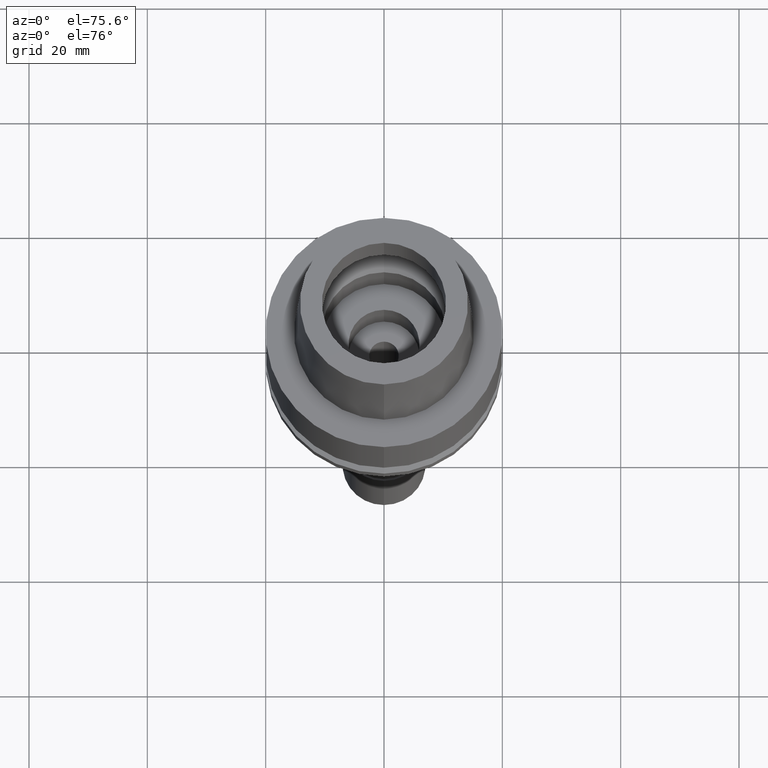
[diagram: clean part render]
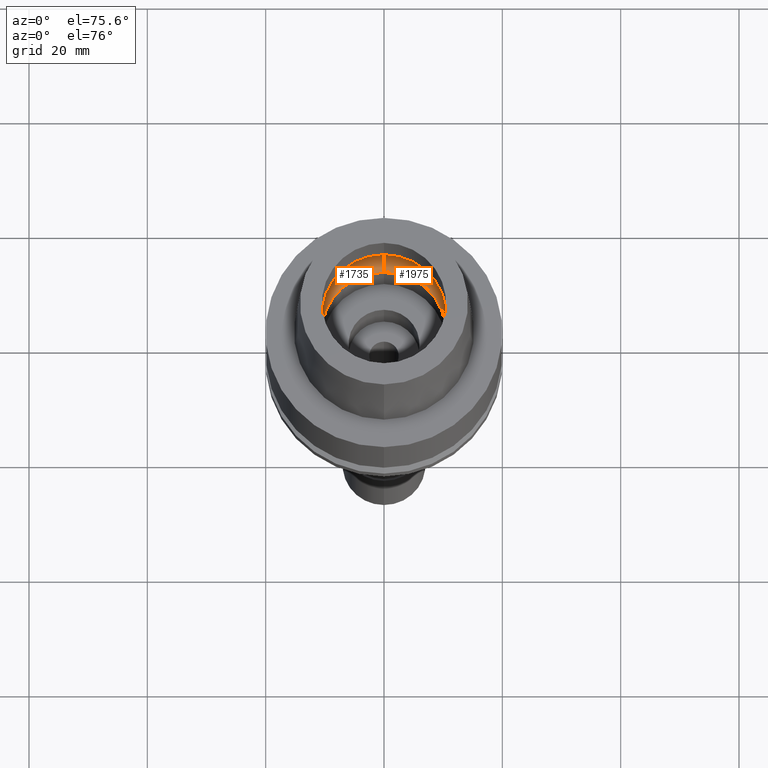
[diagram: same view with one multi-face feature highlighted, each face labeled with its STEP entity id]
A machine part, auxiliary view. The highlighted faces form ONE feature: a constant-radius fillet chain: 2 tangent blend faces with common blend radius 5 mm. The faces share edges in the B-rep.
Their STEP definitions:
[1] entity #1735 (Torus):
#115 = VERTEX_POINT ( 'NONE', #323 ) ;
#169 = CARTESIAN_POINT ( 'NONE',  ( 0.0000000000000000000, 0.0000000000000000000, 4.225999999999999979 ) ) ;
#240 = DIRECTION ( 'NONE',  ( 0.0000000000000000000, 1.000000000000000000, 0.0000000000000000000 ) ) ;
#243 = VERTEX_POINT ( 'NONE', #749 ) ;
#315 = DIRECTION ( 'NONE',  ( 1.000000000000000000, 0.0000000000000000000, 0.0000000000000000000 ) ) ;
#323 = CARTESIAN_POINT ( 'NONE',  ( 0.0000000000000000000, -10.50000000000000000, 0.05017672787749999364 ) ) ;
#425 = CIRCLE ( 'NONE', #645, 12.75000000000000000 ) ;
#440 = CARTESIAN_POINT ( 'NONE',  ( 0.0000000000000000000, 0.0000000000000000000, 4.225999999999999979 ) ) ;
#468 = ORIENTED_EDGE ( 'NONE', *, *, #2306, .F. ) ;
#498 = DIRECTION ( 'NONE',  ( 0.0000000000000000000, -0.5500000000000007105, -0.8351646544245028281 ) ) ;
#591 = CARTESIAN_POINT ( 'NONE',  ( 0.0000000000000000000, -12.75000000000000000, 4.225999999999999979 ) ) ;
#593 = DIRECTION ( 'NONE',  ( 0.0000000000000000000, 0.0000000000000000000, 1.000000000000000000 ) ) ;
#645 = AXIS2_PLACEMENT_3D ( 'NONE', #169, #1202, #1009 ) ;
#749 = CARTESIAN_POINT ( 'NONE',  ( 0.0000000000000000000, 12.75000000000000000, 4.225999999999999979 ) ) ;
#949 = AXIS2_PLACEMENT_3D ( 'NONE', #1766, #315, #2391 ) ;
#980 = CARTESIAN_POINT ( 'NONE',  ( 0.0000000000000000000, 0.0000000000000000000, 0.05017672787749999364 ) ) ;
#1009 = DIRECTION ( 'NONE',  ( 0.0000000000000000000, -1.000000000000000000, 0.0000000000000000000 ) ) ;
#1202 = DIRECTION ( 'NONE',  ( 0.0000000000000000000, 0.0000000000000000000, -1.000000000000000000 ) ) ;
#1204 = DIRECTION ( 'NONE',  ( 0.0000000000000000000, 1.000000000000000000, 0.0000000000000000000 ) ) ;
#1289 = DIRECTION ( 'NONE',  ( 0.0000000000000000000, 0.0000000000000000000, 1.000000000000000000 ) ) ;
#1341 = EDGE_CURVE ( 'NONE', #2330, #243, #2303, .T. ) ;
#1391 = TOROIDAL_SURFACE ( 'NONE', #1779, 7.750000000000000000, 5.000000000000000000 ) ;
#1404 = CARTESIAN_POINT ( 'NONE',  ( 0.0000000000000000000, 10.50000000000000000, 0.05017672787753999636 ) ) ;
#1519 = CARTESIAN_POINT ( 'NONE',  ( 0.0000000000000000000, -7.750000000000000000, 4.225999999999999979 ) ) ;
#1656 = CIRCLE ( 'NONE', #2182, 10.50000000000000000 ) ;
#1680 = VERTEX_POINT ( 'NONE', #591 ) ;
#1684 = EDGE_CURVE ( 'NONE', #1680, #243, #425, .T. ) ;
#1701 = CIRCLE ( 'NONE', #2663, 4.999999999999994671 ) ;
#1735 = ADVANCED_FACE ( 'NONE', ( #2517 ), #1391, .F. ) ;
#1766 = CARTESIAN_POINT ( 'NONE',  ( 0.0000000000000000000, 7.750000000000000000, 4.225999999999999979 ) ) ;
#1779 = AXIS2_PLACEMENT_3D ( 'NONE', #440, #1289, #240 ) ;
#1888 = ORIENTED_EDGE ( 'NONE', *, *, #1341, .T. ) ;
#1974 = DIRECTION ( 'NONE',  ( -1.000000000000000000, 0.0000000000000000000, 0.0000000000000000000 ) ) ;
#2182 = AXIS2_PLACEMENT_3D ( 'NONE', #980, #593, #1204 ) ;
#2183 = EDGE_LOOP ( 'NONE', ( #2340, #2395, #468, #1888 ) ) ;
#2303 = CIRCLE ( 'NONE', #949, 4.999999999999994671 ) ;
#2306 = EDGE_CURVE ( 'NONE', #2330, #115, #1656, .T. ) ;
#2330 = VERTEX_POINT ( 'NONE', #1404 ) ;
#2340 = ORIENTED_EDGE ( 'NONE', *, *, #1684, .F. ) ;
#2391 = DIRECTION ( 'NONE',  ( 0.0000000000000000000, 0.5500000000000007105, -0.8351646544245028281 ) ) ;
#2395 = ORIENTED_EDGE ( 'NONE', *, *, #2556, .F. ) ;
#2517 = FACE_OUTER_BOUND ( 'NONE', #2183, .T. ) ;
#2556 = EDGE_CURVE ( 'NONE', #115, #1680, #1701, .T. ) ;
#2663 = AXIS2_PLACEMENT_3D ( 'NONE', #1519, #1974, #498 ) ;
[2] entity #1975 (Torus):
#4 = DIRECTION ( 'NONE',  ( 0.0000000000000000000, 0.0000000000000000000, 1.000000000000000000 ) ) ;
#40 = EDGE_CURVE ( 'NONE', #115, #2330, #841, .T. ) ;
#80 = DIRECTION ( 'NONE',  ( 0.0000000000000000000, 1.000000000000000000, 0.0000000000000000000 ) ) ;
#115 = VERTEX_POINT ( 'NONE', #323 ) ;
#243 = VERTEX_POINT ( 'NONE', #749 ) ;
#315 = DIRECTION ( 'NONE',  ( 1.000000000000000000, 0.0000000000000000000, 0.0000000000000000000 ) ) ;
#323 = CARTESIAN_POINT ( 'NONE',  ( 0.0000000000000000000, -10.50000000000000000, 0.05017672787749999364 ) ) ;
#498 = DIRECTION ( 'NONE',  ( 0.0000000000000000000, -0.5500000000000007105, -0.8351646544245028281 ) ) ;
#591 = CARTESIAN_POINT ( 'NONE',  ( 0.0000000000000000000, -12.75000000000000000, 4.225999999999999979 ) ) ;
#599 = DIRECTION ( 'NONE',  ( 0.0000000000000000000, 1.000000000000000000, 0.0000000000000000000 ) ) ;
#749 = CARTESIAN_POINT ( 'NONE',  ( 0.0000000000000000000, 12.75000000000000000, 4.225999999999999979 ) ) ;
#774 = AXIS2_PLACEMENT_3D ( 'NONE', #1157, #1982, #80 ) ;
#841 = CIRCLE ( 'NONE', #1449, 10.50000000000000000 ) ;
#858 = EDGE_LOOP ( 'NONE', ( #904, #1618, #2227, #2016 ) ) ;
#904 = ORIENTED_EDGE ( 'NONE', *, *, #40, .F. ) ;
#949 = AXIS2_PLACEMENT_3D ( 'NONE', #1766, #315, #2391 ) ;
#1157 = CARTESIAN_POINT ( 'NONE',  ( 0.0000000000000000000, 0.0000000000000000000, 4.225999999999999979 ) ) ;
#1223 = TOROIDAL_SURFACE ( 'NONE', #1995, 7.750000000000000000, 5.000000000000000000 ) ;
#1225 = FACE_OUTER_BOUND ( 'NONE', #858, .T. ) ;
#1328 = EDGE_CURVE ( 'NONE', #243, #1680, #2134, .T. ) ;
#1341 = EDGE_CURVE ( 'NONE', #2330, #243, #2303, .T. ) ;
#1404 = CARTESIAN_POINT ( 'NONE',  ( 0.0000000000000000000, 10.50000000000000000, 0.05017672787753999636 ) ) ;
#1449 = AXIS2_PLACEMENT_3D ( 'NONE', #2212, #1787, #2597 ) ;
#1519 = CARTESIAN_POINT ( 'NONE',  ( 0.0000000000000000000, -7.750000000000000000, 4.225999999999999979 ) ) ;
#1618 = ORIENTED_EDGE ( 'NONE', *, *, #2556, .T. ) ;
#1643 = CARTESIAN_POINT ( 'NONE',  ( 0.0000000000000000000, 0.0000000000000000000, 4.225999999999999979 ) ) ;
#1680 = VERTEX_POINT ( 'NONE', #591 ) ;
#1701 = CIRCLE ( 'NONE', #2663, 4.999999999999994671 ) ;
#1766 = CARTESIAN_POINT ( 'NONE',  ( 0.0000000000000000000, 7.750000000000000000, 4.225999999999999979 ) ) ;
#1787 = DIRECTION ( 'NONE',  ( 0.0000000000000000000, 0.0000000000000000000, 1.000000000000000000 ) ) ;
#1974 = DIRECTION ( 'NONE',  ( -1.000000000000000000, 0.0000000000000000000, 0.0000000000000000000 ) ) ;
#1975 = ADVANCED_FACE ( 'NONE', ( #1225 ), #1223, .F. ) ;
#1982 = DIRECTION ( 'NONE',  ( 0.0000000000000000000, 0.0000000000000000000, -1.000000000000000000 ) ) ;
#1995 = AXIS2_PLACEMENT_3D ( 'NONE', #1643, #4, #599 ) ;
#2016 = ORIENTED_EDGE ( 'NONE', *, *, #1341, .F. ) ;
#2134 = CIRCLE ( 'NONE', #774, 12.75000000000000000 ) ;
#2212 = CARTESIAN_POINT ( 'NONE',  ( 0.0000000000000000000, 0.0000000000000000000, 0.05017672787749999364 ) ) ;
#2227 = ORIENTED_EDGE ( 'NONE', *, *, #1328, .F. ) ;
#2303 = CIRCLE ( 'NONE', #949, 4.999999999999994671 ) ;
#2330 = VERTEX_POINT ( 'NONE', #1404 ) ;
#2391 = DIRECTION ( 'NONE',  ( 0.0000000000000000000, 0.5500000000000007105, -0.8351646544245028281 ) ) ;
#2556 = EDGE_CURVE ( 'NONE', #115, #1680, #1701, .T. ) ;
#2597 = DIRECTION ( 'NONE',  ( 0.0000000000000000000, -1.000000000000000000, 0.0000000000000000000 ) ) ;
#2663 = AXIS2_PLACEMENT_3D ( 'NONE', #1519, #1974, #498 ) ;